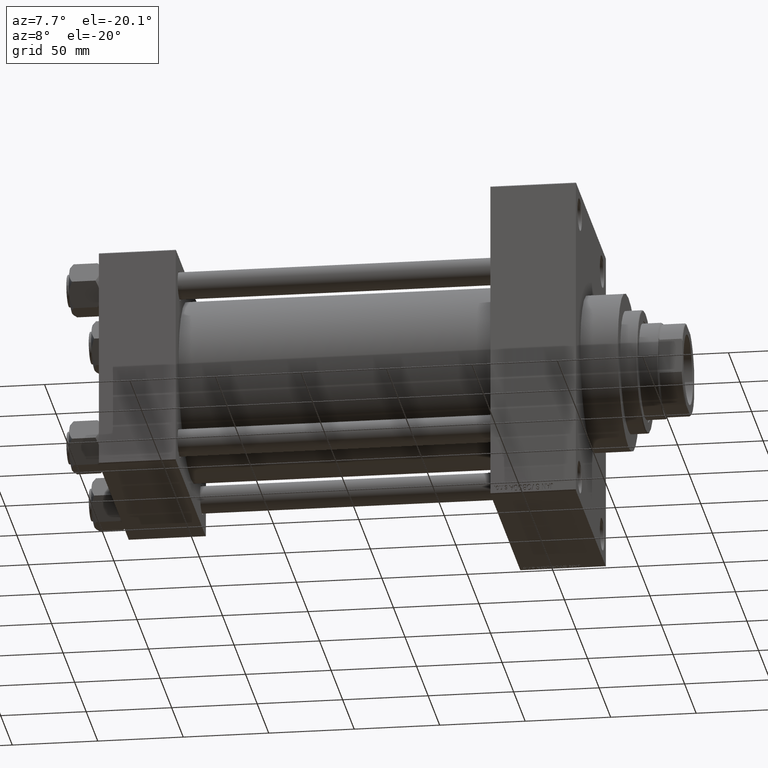
[diagram: clean part render]
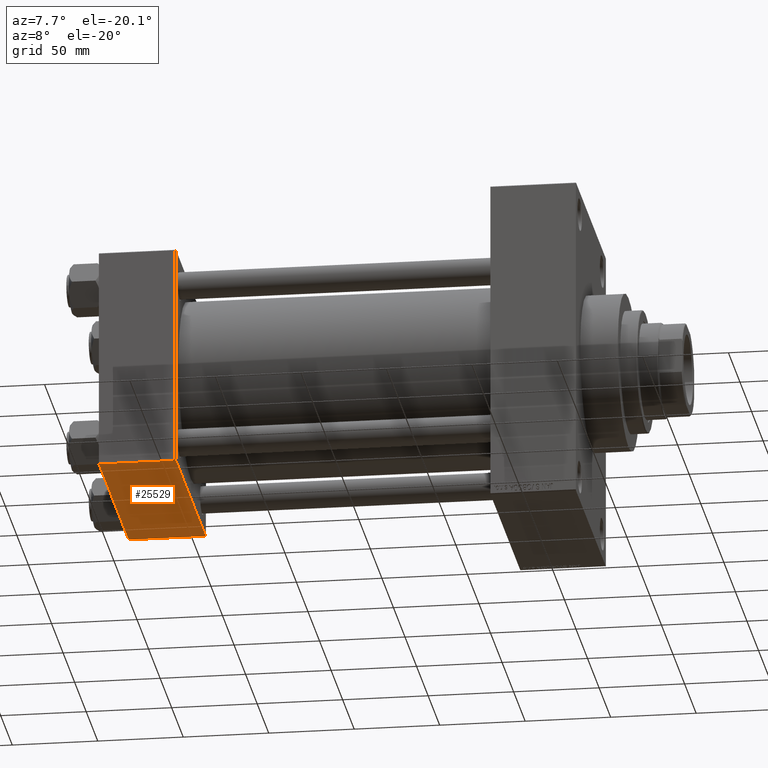
[diagram: same view with one face highlighted and labeled with its STEP entity id]
A machine part, auxiliary view. The second image highlights one B-rep face of the part: STEP entity #25529.
In plain terms, the highlighted planar face has unit normal (0, 0, -1).
Its self-contained STEP definition (entity closure, byte-faithful):
#159 = CARTESIAN_POINT ( 'NONE',  ( 45.00000000000000000, -64.49999999999994316, -65.00000000000000000 ) ) ;
#876 = PLANE ( 'NONE',  #13420 ) ;
#1487 = ORIENTED_EDGE ( 'NONE', *, *, #6303, .T. ) ;
#1820 = VERTEX_POINT ( 'NONE', #31605 ) ;
#3492 = CARTESIAN_POINT ( 'NONE',  ( 45.00000000000000000, 64.49999999999997158, -64.99999999999998579 ) ) ;
#5012 = CARTESIAN_POINT ( 'NONE',  ( 0.000000000000000000, 64.49999999999997158, -64.99999999999998579 ) ) ;
#5208 = VECTOR ( 'NONE', #7828, 1000.000000000000000 ) ;
#6235 = VERTEX_POINT ( 'NONE', #25491 ) ;
#6303 = EDGE_CURVE ( 'NONE', #29182, #6235, #11009, .T. ) ;
#7092 = VECTOR ( 'NONE', #41376, 1000.000000000000000 ) ;
#7593 = LINE ( 'NONE', #3492, #5208 ) ;
#7828 = DIRECTION ( 'NONE',  ( 1.000000000000000000, 0.000000000000000000, 0.000000000000000000 ) ) ;
#7841 = LINE ( 'NONE', #11460, #7092 ) ;
#8367 = FACE_OUTER_BOUND ( 'NONE', #22831, .T. ) ;
#9312 = DIRECTION ( 'NONE',  ( 0.000000000000000000, 1.000000000000000000, 1.067522139062650548E-16 ) ) ;
#10979 = VECTOR ( 'NONE', #39980, 1000.000000000000000 ) ;
#11009 = LINE ( 'NONE', #33435, #10979 ) ;
#11460 = CARTESIAN_POINT ( 'NONE',  ( 0.000000000000000000, 65.00000000000000000, -64.99999999999998579 ) ) ;
#13420 = AXIS2_PLACEMENT_3D ( 'NONE', #38274, #45047, #9312 ) ;
#13962 = ORIENTED_EDGE ( 'NONE', *, *, #22973, .T. ) ;
#17649 = VERTEX_POINT ( 'NONE', #5012 ) ;
#22117 = EDGE_CURVE ( 'NONE', #17649, #1820, #7593, .T. ) ;
#22813 = ORIENTED_EDGE ( 'NONE', *, *, #47557, .F. ) ;
#22831 = EDGE_LOOP ( 'NONE', ( #22813, #30510, #13962, #1487 ) ) ;
#22973 = EDGE_CURVE ( 'NONE', #1820, #29182, #27693, .T. ) ;
#25491 = CARTESIAN_POINT ( 'NONE',  ( 0.000000000000000000, -64.49999999999994316, -65.00000000000000000 ) ) ;
#25529 = ADVANCED_FACE ( 'NONE', ( #8367 ), #876, .T. ) ;
#27693 = LINE ( 'NONE', #35194, #38888 ) ;
#29182 = VERTEX_POINT ( 'NONE', #159 ) ;
#30510 = ORIENTED_EDGE ( 'NONE', *, *, #22117, .T. ) ;
#31605 = CARTESIAN_POINT ( 'NONE',  ( 45.00000000000000000, 64.49999999999997158, -64.99999999999998579 ) ) ;
#33435 = CARTESIAN_POINT ( 'NONE',  ( 0.000000000000000000, -64.49999999999994316, -65.00000000000000000 ) ) ;
#35194 = CARTESIAN_POINT ( 'NONE',  ( 45.00000000000000000, 65.00000000000000000, -64.99999999999998579 ) ) ;
#38274 = CARTESIAN_POINT ( 'NONE',  ( 45.00000000000000000, 65.00000000000000000, -64.99999999999998579 ) ) ;
#38888 = VECTOR ( 'NONE', #39050, 1000.000000000000000 ) ;
#39050 = DIRECTION ( 'NONE',  ( 0.000000000000000000, -1.000000000000000000, -1.067522139062650425E-16 ) ) ;
#39980 = DIRECTION ( 'NONE',  ( -1.000000000000000000, 0.000000000000000000, 0.000000000000000000 ) ) ;
#41376 = DIRECTION ( 'NONE',  ( 0.000000000000000000, -1.000000000000000000, -1.067522139062650425E-16 ) ) ;
#45047 = DIRECTION ( 'NONE',  ( 0.000000000000000000, 1.067522139062650548E-16, -1.000000000000000000 ) ) ;
#47557 = EDGE_CURVE ( 'NONE', #17649, #6235, #7841, .T. ) ;